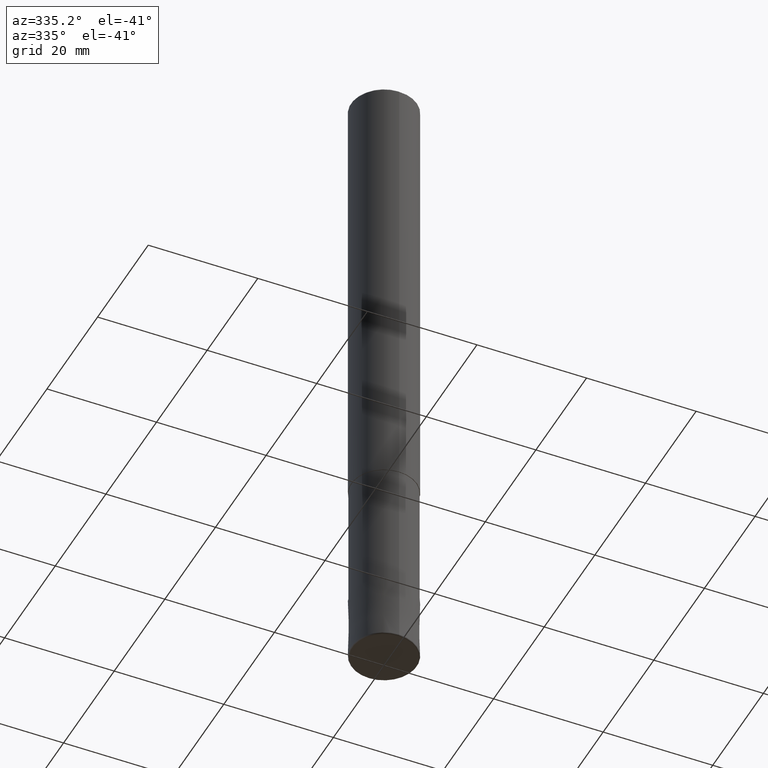
[diagram: clean part render]
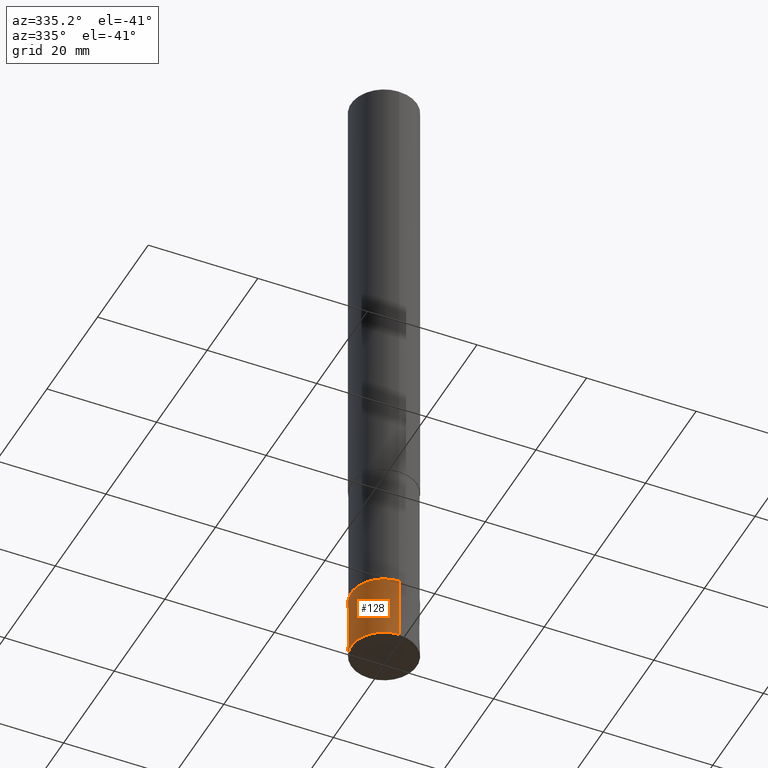
[diagram: same view with one face highlighted and labeled with its STEP entity id]
A machine part, auxiliary view. The second image highlights one B-rep face of the part: STEP entity #128.
In plain terms, the highlighted conical surface has half-angle 0 deg.
Its self-contained STEP definition (entity closure, byte-faithful):
#108=EDGE_CURVE('',#164,#172,#247,.T.);
#128=ADVANCED_FACE('',(#269),#270,.T.);
#144=EDGE_CURVE('',#178,#172,#288,.T.);
#156=EDGE_CURVE('',#170,#164,#301,.T.);
#164=VERTEX_POINT('',#311);
#170=VERTEX_POINT('',#319);
#172=VERTEX_POINT('',#321);
#178=VERTEX_POINT('',#328);
#196=EDGE_CURVE('',#178,#170,#347,.T.);
#247=LINE('',#401,#402);
#269=FACE_OUTER_BOUND('',#428,.T.);
#270=CONICAL_SURFACE('',#429,5.99995,8.5470085467805E-006);
#288=CIRCLE('',#450,6.0);
#301=CIRCLE('',#466,5.9999);
#311=CARTESIAN_POINT('',(0.0,5.9999,-108.0));
#319=CARTESIAN_POINT('',(7.34751566229888E-016,-5.9999,-108.0));
#321=CARTESIAN_POINT('',(0.0,6.0,-119.7));
#328=CARTESIAN_POINT('',(7.34763812293427E-016,-6.0,-119.7));
#347=LINE('',#521,#522);
#401=CARTESIAN_POINT('',(-7.34757689261657E-016,5.99995,-113.85));
#402=VECTOR('',#557,1.0);
#428=EDGE_LOOP('',(#585,#586,#587,#588));
#429=AXIS2_PLACEMENT_3D('',#589,#590,#591);
#450=AXIS2_PLACEMENT_3D('',#616,#617,#618);
#466=AXIS2_PLACEMENT_3D('',#632,#633,#634);
#521=CARTESIAN_POINT('',(7.34757689261657E-016,-5.99995,-113.85));
#522=VECTOR('',#695,1.0);
#557=DIRECTION('',(-1.04667209724341E-021,8.54700854667644E-006,-0.999999999963474));
#585=ORIENTED_EDGE('',*,*,#108,.T.);
#586=ORIENTED_EDGE('',*,*,#144,.F.);
#587=ORIENTED_EDGE('',*,*,#196,.T.);
#588=ORIENTED_EDGE('',*,*,#156,.T.);
#589=CARTESIAN_POINT('',(0.0,0.0,-113.85));
#590=DIRECTION('',(0.0,-0.0,-1.0));
#591=DIRECTION('',(0.0,1.0,0.0));
#616=CARTESIAN_POINT('',(0.0,0.0,-119.7));
#617=DIRECTION('',(0.0,0.0,-1.0));
#618=DIRECTION('',(0.0,1.0,0.0));
#632=CARTESIAN_POINT('',(0.0,0.0,-108.0));
#633=DIRECTION('',(0.0,0.0,-1.0));
#634=DIRECTION('',(0.0,1.0,0.0));
#695=DIRECTION('',(-1.04667209724341E-021,8.54700854667644E-006,0.999999999963474));